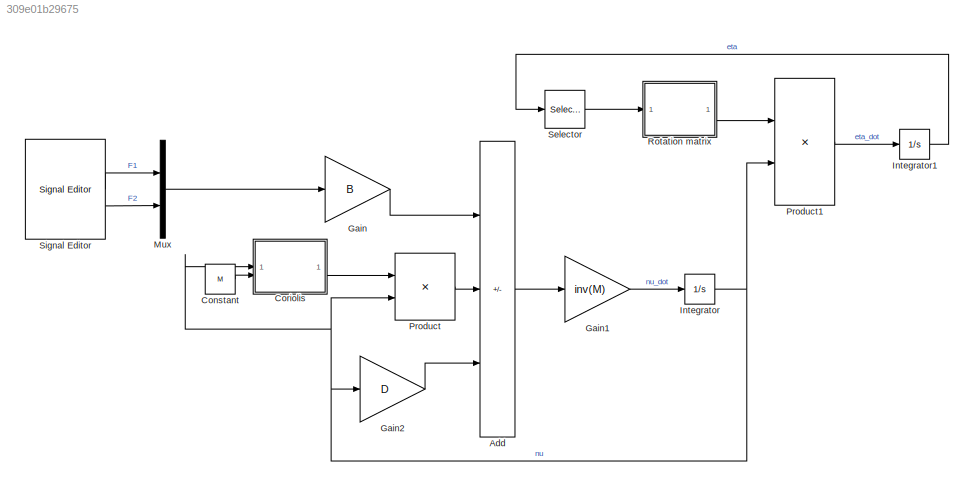
MODEL slx_309e01b29675
KIND model
CONFIG AbsTol = auto
CONFIG EnableMultiTasking = off
CONFIG FixedStep = auto
CONFIG MaxStep = auto
CONFIG MinStep = auto
CONFIG RelTol = 1e-3
CONFIG SampleTimeConstraint = Unconstrained
CONFIG SolverName = VariableStepAuto
CONFIG StartTime = 0.0
CONFIG StopTime = 10.0
BLOCK [Sum] Add
  IconShape = rectangular
  Inputs = +--
BLOCK [Constant] Constant
  Value = M
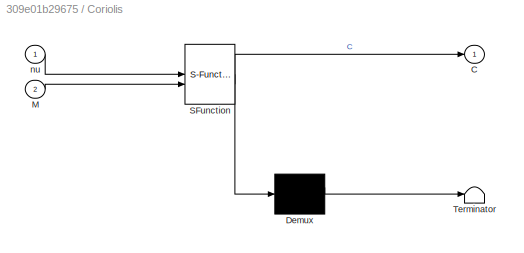
BLOCK [SubSystem] Coriolis
  ErrorFcn = Stateflow.Translate.translate
  PermitHierarchicalResolution = ExplicitOnly
  SFBlockType = MATLAB Function
  TreatAsAtomicUnit = on
BLOCK [Demux] Coriolis/ Demux 
  Outputs = 1
BLOCK [S-Function] Coriolis/ SFunction 
  EnableBusSupport = on
  FunctionName = sf_sfun
  PortCounts = [2 2]
  SFcnIsStateOwnerBlock = off
  SFunctionDeploymentMode = off
  Tag = Stateflow S-Function 2
BLOCK [Terminator] Coriolis/ Terminator 
BLOCK [Outport] Coriolis/C
BLOCK [Inport] Coriolis/M
  Port = 2
BLOCK [Inport] Coriolis/nu
BLOCK [Gain] Gain
  Gain = B
  Multiplication = Matrix(K*u)
BLOCK [Gain] Gain1
  Gain = inv(M)
  Multiplication = Matrix(K*u)
BLOCK [Gain] Gain2
  Gain = D
  Multiplication = Matrix(K*u)
BLOCK [Integrator] Integrator
BLOCK [Integrator] Integrator1
BLOCK [Mux] Mux
  DisplayOption = bar
  Inputs = 2
BLOCK [Product] Product
  Multiplication = Matrix(*)
BLOCK [Product] Product1
  Multiplication = Matrix(*)
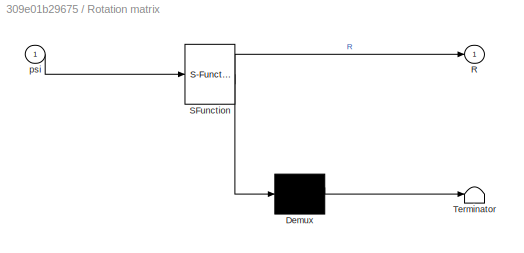
BLOCK [SubSystem] Rotation matrix
  ErrorFcn = Stateflow.Translate.translate
  PermitHierarchicalResolution = ExplicitOnly
  SFBlockType = MATLAB Function
  TreatAsAtomicUnit = on
BLOCK [Demux] Rotation matrix/ Demux 
  Outputs = 1
BLOCK [S-Function] Rotation matrix/ SFunction 
  EnableBusSupport = on
  FunctionName = sf_sfun
  PortCounts = [1 2]
  SFcnIsStateOwnerBlock = off
  SFunctionDeploymentMode = off
  Tag = Stateflow S-Function 1
BLOCK [Terminator] Rotation matrix/ Terminator 
BLOCK [Outport] Rotation matrix/R
BLOCK [Inport] Rotation matrix/psi
BLOCK [Selector] Selector
  IndexOptions = Index vector (dialog)
  Indices = 3
  InputPortWidth = 3
  OutputSizes = 1
BLOCK [Reference] Signal Editor  REF=SignalEditorBlockLib/Signal Editor
  LibrarySourceBlock = simulink/Sources/Signal Editor
  SourceBlock = SignalEditorBlockLib/Signal Editor
  SourceType = SignalEditor
  UserDataPersistent = on
LINE Add:1 -> Gain1:1
LINE Constant:1 -> Coriolis:2
LINE Coriolis:1 -> Product:1
LINE Gain1:1 -> Integrator:1
LINE Gain2:1 -> Add:3
LINE Gain:1 -> Add:1
LINE Integrator1:1 -> Selector:1
NET Integrator:1 -> Coriolis:1, Gain2:1, Product1:2, Product:2
LINE Mux:1 -> Gain:1
LINE Product1:1 -> Integrator1:1
LINE Product:1 -> Add:2
LINE Rotation matrix:1 -> Product1:1
LINE Selector:1 -> Rotation matrix:1
LINE Signal Editor:1 -> Mux:1
LINE Signal Editor:2 -> Mux:2
note: NET lines group one-source signal fan-out (src -> all destinations, sorted); 1:1 wires keep LINE
CHART Rotation matrix states=1 transitions=1
  STATE_LABEL 'eML_blk_kernel()'
  STATE_LABEL 'SCRIPT:\nfunction R = fcn(psi)\n\n% Calculate R\nR = [cos(psi), -sin(psi), 0; sin(psi), cos(psi), 0; 0, 0, 1];\n\n\n'
CHART Coriolis states=1 transitions=1
  STATE_LABEL 'eML_blk_kernel()'
  STATE_LABEL 'SCRIPT:\nfunction C = fcn(nu, M)\n\n% Get u, v, r from nu\nu = nu(1);\nv = nu(2);\nr = nu(3);\n\n% Calculate C\nC = [0, 0, -M(2,2)*v - M(2,3)*r;\n     0, M(1,1)*u, 0;\n     M(2,2)*v + M(2,3)*r, -M(1,1)*u, 0];\n\n\n'
CHART  states=0 transitions=0
CHART  states=0 transitions=0
